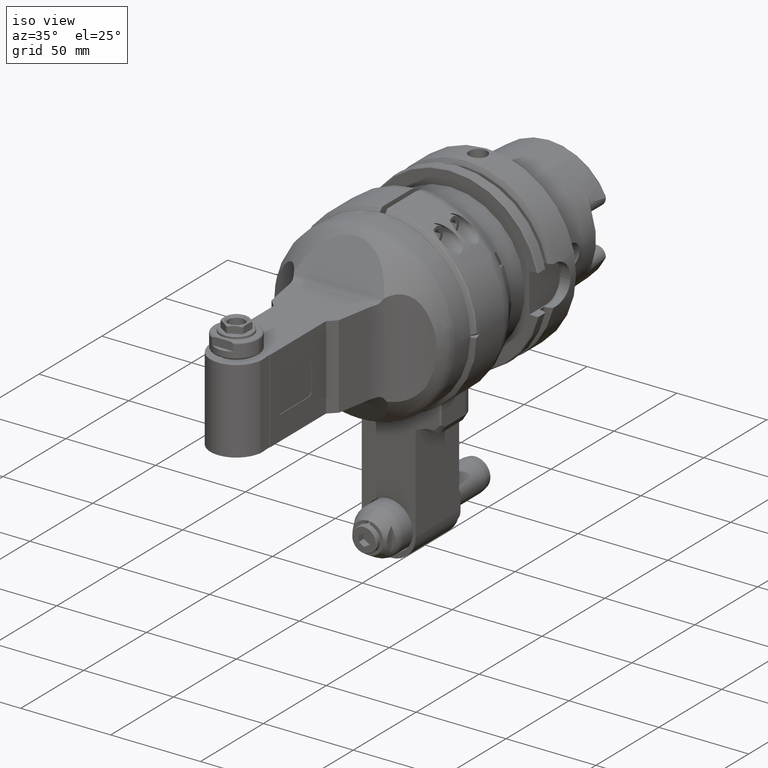
[diagram: clean part render]
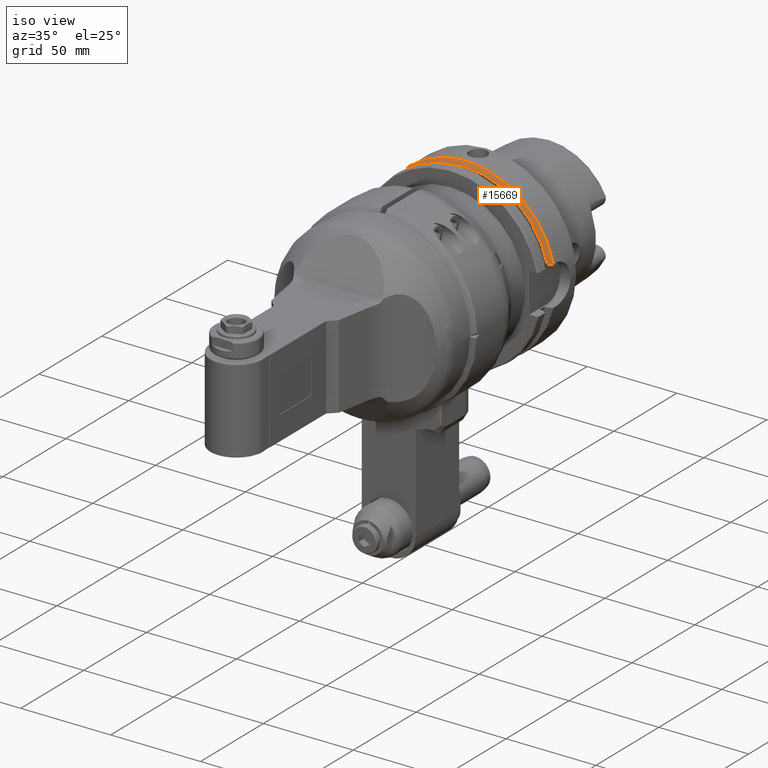
[diagram: same view with one face highlighted and labeled with its STEP entity id]
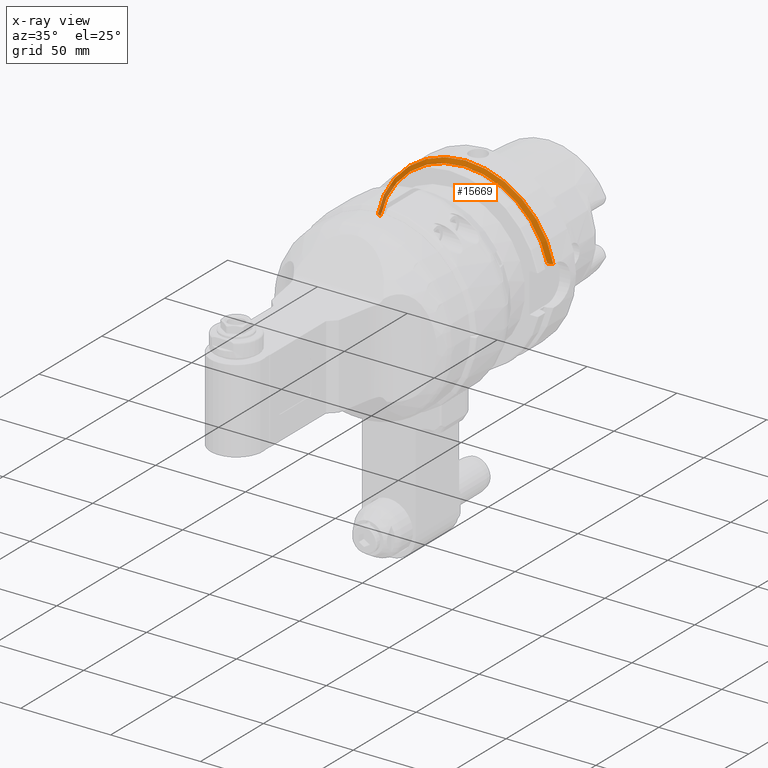
[diagram: x-ray of the same camera — body ghosted, the highlighted face saturated]
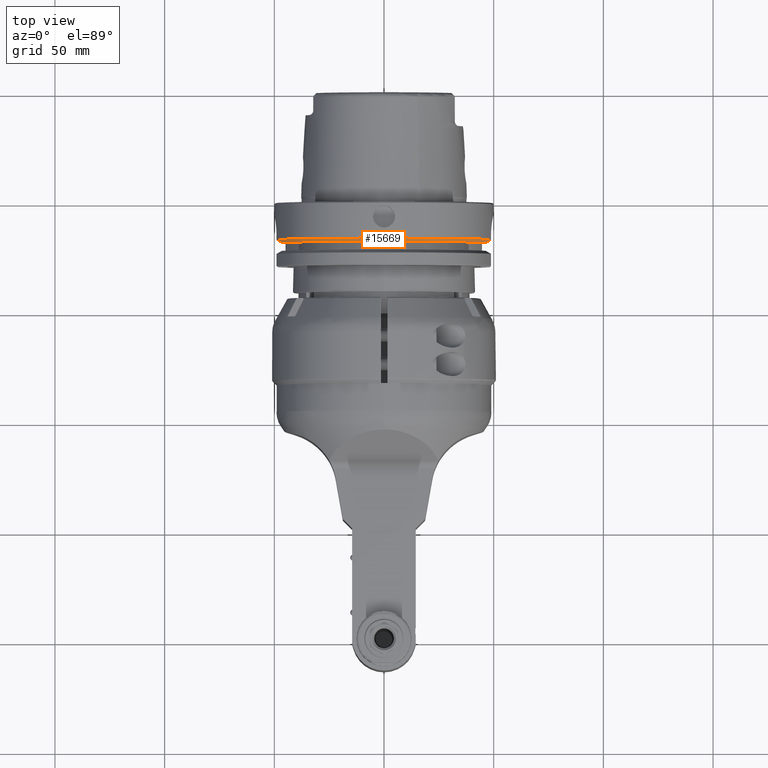
[diagram: same view with one face highlighted and labeled with its STEP entity id]
A machine part, iso view. The second image highlights one B-rep face of the part: STEP entity #15669.
The next image is the same camera in x-ray: the body ghosted, the highlighted face saturated — about 9% of this face is hidden behind the body in this view.
A second angle (top view) of the same face is appended — the face is thin or edge-on in the first view.
In plain terms, the highlighted conical surface has half-angle 60 deg.
Its self-contained STEP definition (entity closure, byte-faithful):
#2688=CARTESIAN_POINT('',(4.633477721644E1,1.80875E2,1.099999999999E1));
#2689=CARTESIAN_POINT('',(4.659464476879E1,1.810209773410E2,1.099999999999E1));
#2690=CARTESIAN_POINT('',(4.712188915319E1,1.813172813857E2,1.099999999999E1));
#2691=CARTESIAN_POINT('',(4.793491428601E1,1.817745922476E2,1.099999999999E1));
#2692=CARTESIAN_POINT('',(4.849242570048E1,1.820884515822E2,1.099999999999E1));
#2693=CARTESIAN_POINT('',(4.877499359303E1,1.822475952642E2,1.099999999999E1));
#2695=CARTESIAN_POINT('',(-4.898979485566E1,1.822475952642E2,9.999999999989E0));
#2696=CARTESIAN_POINT('',(-4.871012290065E1,1.820893889155E2,9.999999999989E0));
#2697=CARTESIAN_POINT('',(-4.815730537453E1,1.817767765159E2,9.999999999989E0));
#2698=CARTESIAN_POINT('',(-4.734784264088E1,1.813193558181E2,9.999999999990E0));
#2699=CARTESIAN_POINT('',(-4.682101607352E1,1.810218651610E2,9.999999999990E0));
#2700=CARTESIAN_POINT('',(-4.656083740331E1,1.80875E2,9.999999999990E0));
#2702=CARTESIAN_POINT('',(0.E0,1.822475952642E2,-1.082561635248E-11));
#2703=DIRECTION('',(0.E0,-1.E0,3.552713678797E-13));
#2704=DIRECTION('',(0.E0,3.552713678800E-13,1.E0));
#2705=AXIS2_PLACEMENT_3D('',#2702,#2703,#2704);
#2707=CARTESIAN_POINT('',(0.E0,1.822475952642E2,-1.082561635248E-11));
#2708=DIRECTION('',(0.E0,-1.E0,3.552713678797E-13));
#2709=DIRECTION('',(9.754998718606E-1,7.844391802792E-14,2.2E-1));
#2710=AXIS2_PLACEMENT_3D('',#2707,#2708,#2709);
#2717=CARTESIAN_POINT('',(0.E0,1.80875E2,-1.033797255542E-11));
#2718=DIRECTION('',(0.E0,-1.E0,3.552713678797E-13));
#2719=DIRECTION('',(0.E0,3.551028039794E-13,1.E0));
#2720=AXIS2_PLACEMENT_3D('',#2717,#2718,#2719);
#2722=CARTESIAN_POINT('',(0.E0,1.80875E2,-1.033797255542E-11));
#2723=DIRECTION('',(0.E0,-1.E0,3.552713678797E-13));
#2724=DIRECTION('',(9.729578356533E-1,8.235997806581E-14,2.309827916554E-1));
#2725=AXIS2_PLACEMENT_3D('',#2722,#2723,#2724);
#11939=CARTESIAN_POINT('',(0.E0,1.80875E2,4.762259526418E1));
#11940=CARTESIAN_POINT('',(-4.656083740330E1,1.80875E2,9.999999999990E0));
#11941=VERTEX_POINT('',#11939);
#11942=VERTEX_POINT('',#11940);
#11943=CARTESIAN_POINT('',(4.633477721644E1,1.80875E2,1.099999999999E1));
#11944=VERTEX_POINT('',#11943);
#11945=VERTEX_POINT('',#2695);
#11946=CARTESIAN_POINT('',(0.E0,1.822475952642E2,4.999999999999E1));
#11947=VERTEX_POINT('',#11946);
#11948=CARTESIAN_POINT('',(4.877499359303E1,1.822475952642E2,1.099999999999E1));
#11949=VERTEX_POINT('',#11948);
#15654=CARTESIAN_POINT('',(0.E0,1.815612976321E2,-1.058179445395E-11));
#15655=DIRECTION('',(0.E0,1.E0,-3.552713678797E-13));
#15656=DIRECTION('',(0.E0,-3.552713678797E-13,-1.E0));
#15657=AXIS2_PLACEMENT_3D('',#15654,#15655,#15656);
#15658=CONICAL_SURFACE('',#15657,4.881129763210E1,6.E1);
#15659=ORIENTED_EDGE('',*,*,#15464,.F.);
#15661=ORIENTED_EDGE('',*,*,#15660,.T.);
#15663=ORIENTED_EDGE('',*,*,#15662,.T.);
#15664=ORIENTED_EDGE('',*,*,#15635,.F.);
#15665=ORIENTED_EDGE('',*,*,#15561,.F.);
#15666=ORIENTED_EDGE('',*,*,#15504,.F.);
#15667=EDGE_LOOP('',(#15659,#15661,#15663,#15664,#15665,#15666));
#15668=FACE_OUTER_BOUND('',#15667,.F.);
#15669=ADVANCED_FACE('',(#15668),#15658,.T.);
#2694=B_SPLINE_CURVE_WITH_KNOTS('',3,(#2688,#2689,#2690,#2691,#2692,#2693),
.UNSPECIFIED.,.F.,.F.,(4,1,1,4),(0.E0,3.333333333333E-1,6.666666666667E-1,1.E0),
.UNSPECIFIED.);
#2701=B_SPLINE_CURVE_WITH_KNOTS('',3,(#2695,#2696,#2697,#2698,#2699,#2700),
.UNSPECIFIED.,.F.,.F.,(4,1,1,4),(0.E0,3.333333333333E-1,6.666666666667E-1,1.E0),
.UNSPECIFIED.);
#2706=CIRCLE('',#2705,5.E1);
#2711=CIRCLE('',#2710,5.E1);
#2721=CIRCLE('',#2720,4.762259526419E1);
#2726=CIRCLE('',#2725,4.762259526419E1);
#15464=EDGE_CURVE('',#11944,#11949,#2694,.T.);
#15504=EDGE_CURVE('',#11949,#11947,#2711,.T.);
#15561=EDGE_CURVE('',#11947,#11945,#2706,.T.);
#15635=EDGE_CURVE('',#11945,#11942,#2701,.T.);
#15660=EDGE_CURVE('',#11944,#11941,#2726,.T.);
#15662=EDGE_CURVE('',#11941,#11942,#2721,.T.);